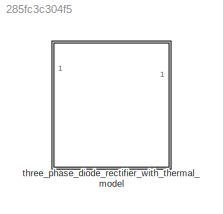
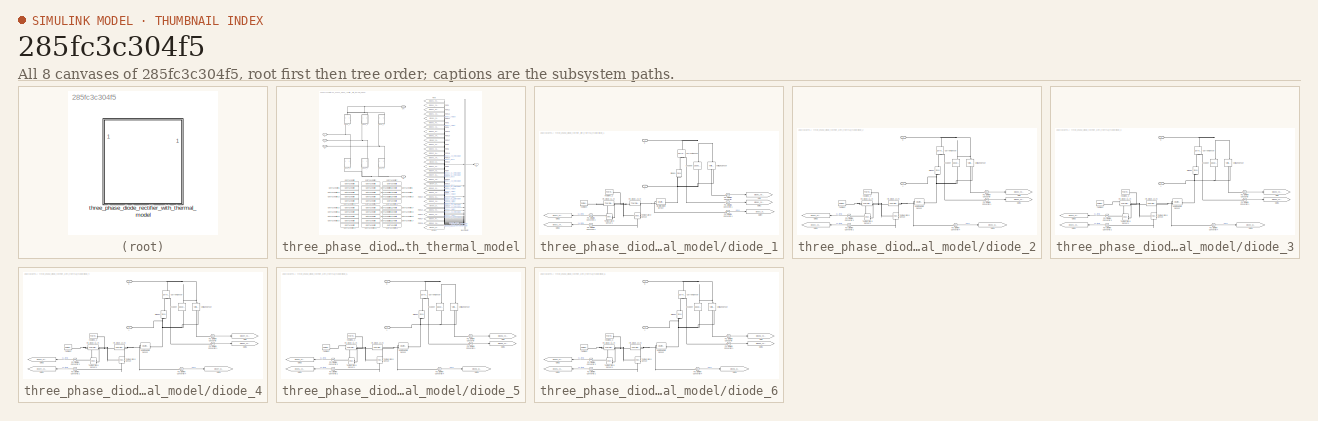
[diagram: thumbnail index - all 8 canvases of the model, root first then tree order]
MODEL slx_285fc3c304f5
KIND library
CONFIG AbsTol = auto
CONFIG EnableMultiTasking = off
CONFIG FixedStep = auto
CONFIG MaxStep = auto
CONFIG MinStep = auto
CONFIG RelTol = 1e-3
CONFIG SampleTimeConstraint = Unconstrained
CONFIG SolverName = VariableStepAuto
CONFIG StartTime = 0.0
CONFIG StopTime = 10.0
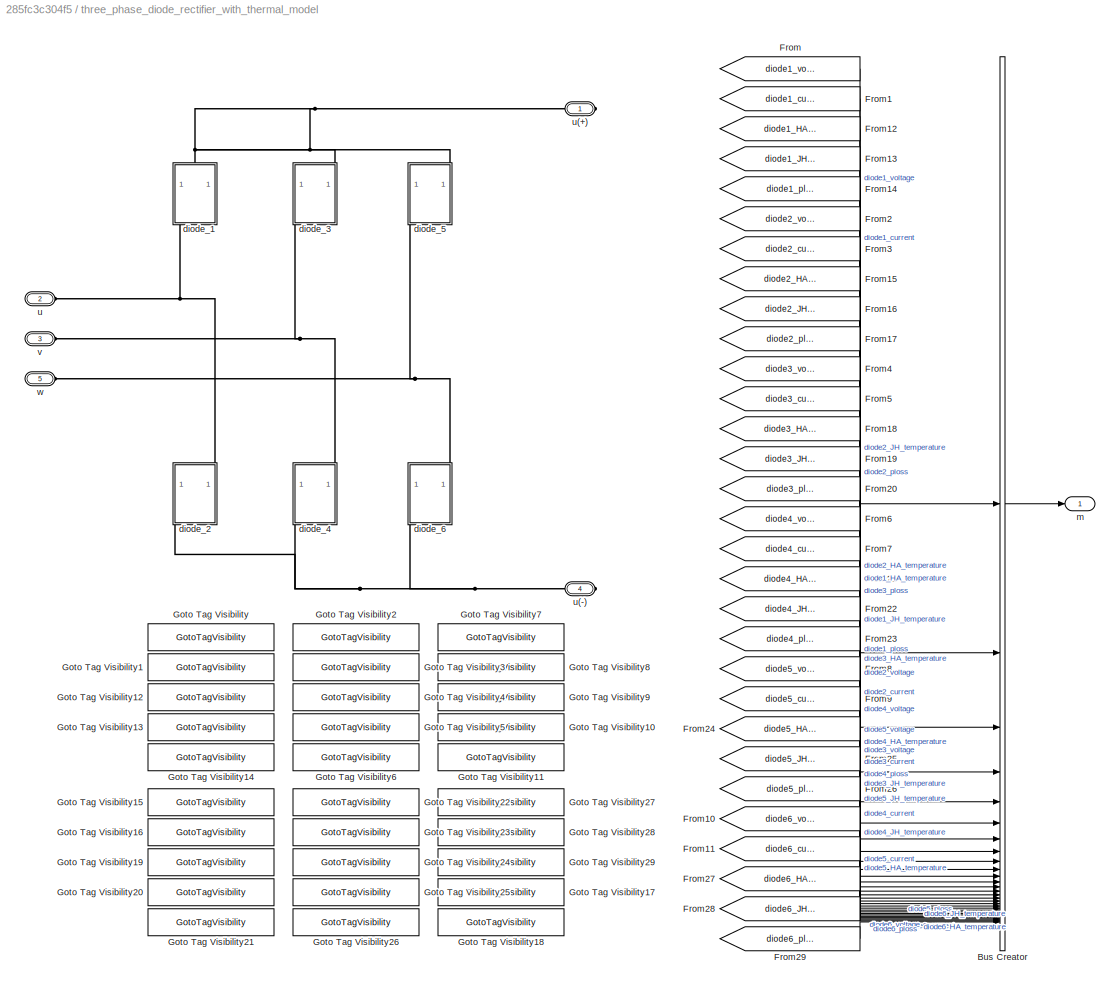
BLOCK [SubSystem] three_phase_diode_rectifier_with_thermal_model
BLOCK [BusCreator] three_phase_diode_rectifier_with_thermal_model/Bus Creator
  DisplayOption = bar
  InheritFromInputs = on
  Inputs = 30
BLOCK [From] three_phase_diode_rectifier_with_thermal_model/From
  GotoTag = diode1_voltage
  TagVisibility = scoped
BLOCK [From] three_phase_diode_rectifier_with_thermal_model/From1
  GotoTag = diode1_current
  TagVisibility = scoped
BLOCK [From] three_phase_diode_rectifier_with_thermal_model/From10
  GotoTag = diode6_voltage
  TagVisibility = scoped
BLOCK [From] three_phase_diode_rectifier_with_thermal_model/From11
  GotoTag = diode6_current
  TagVisibility = scoped
BLOCK [From] three_phase_diode_rectifier_with_thermal_model/From12
  GotoTag = diode1_HA_temperature
  TagVisibility = scoped
BLOCK [From] three_phase_diode_rectifier_with_thermal_model/From13
  GotoTag = diode1_JH_temperature
  TagVisibility = scoped
BLOCK [From] three_phase_diode_rectifier_with_thermal_model/From14
  GotoTag = diode1_ploss
  TagVisibility = scoped
BLOCK [From] three_phase_diode_rectifier_with_thermal_model/From15
  GotoTag = diode2_HA_temperature
  TagVisibility = scoped
BLOCK [From] three_phase_diode_rectifier_with_thermal_model/From16
  GotoTag = diode2_JH_temperature
  TagVisibility = scoped
BLOCK [From] three_phase_diode_rectifier_with_thermal_model/From17
  GotoTag = diode2_ploss
  TagVisibility = scoped
BLOCK [From] three_phase_diode_rectifier_with_thermal_model/From18
  GotoTag = diode3_HA_temperature
  TagVisibility = scoped
BLOCK [From] three_phase_diode_rectifier_with_thermal_model/From19
  GotoTag = diode3_JH_temperature
  TagVisibility = scoped
BLOCK [From] three_phase_diode_rectifier_with_thermal_model/From2
  GotoTag = diode2_voltage
  TagVisibility = scoped
BLOCK [From] three_phase_diode_rectifier_with_thermal_model/From20
  GotoTag = diode3_ploss
  TagVisibility = scoped
BLOCK [From] three_phase_diode_rectifier_with_thermal_model/From21
  GotoTag = diode4_HA_temperature
  TagVisibility = scoped
BLOCK [From] three_phase_diode_rectifier_with_thermal_model/From22
  GotoTag = diode4_JH_temperature
  TagVisibility = scoped
BLOCK [From] three_phase_diode_rectifier_with_thermal_model/From23
  GotoTag = diode4_ploss
  TagVisibility = scoped
BLOCK [From] three_phase_diode_rectifier_with_thermal_model/From24
  GotoTag = diode5_HA_temperature
  TagVisibility = scoped
BLOCK [From] three_phase_diode_rectifier_with_thermal_model/From25
  GotoTag = diode5_JH_temperature
  TagVisibility = scoped
BLOCK [From] three_phase_diode_rectifier_with_thermal_model/From26
  GotoTag = diode5_ploss
  TagVisibility = scoped
BLOCK [From] three_phase_diode_rectifier_with_thermal_model/From27
  GotoTag = diode6_HA_temperature
  TagVisibility = scoped
BLOCK [From] three_phase_diode_rectifier_with_thermal_model/From28
  GotoTag = diode6_JH_temperature
  TagVisibility = scoped
BLOCK [From] three_phase_diode_rectifier_with_thermal_model/From29
  GotoTag = diode6_ploss
  TagVisibility = scoped
BLOCK [From] three_phase_diode_rectifier_with_thermal_model/From3
  GotoTag = diode2_current
  TagVisibility = scoped
BLOCK [From] three_phase_diode_rectifier_with_thermal_model/From4
  GotoTag = diode3_voltage
  TagVisibility = scoped
BLOCK [From] three_phase_diode_rectifier_with_thermal_model/From5
  GotoTag = diode3_current
  TagVisibility = scoped
BLOCK [From] three_phase_diode_rectifier_with_thermal_model/From6
  GotoTag = diode4_voltage
  TagVisibility = scoped
BLOCK [From] three_phase_diode_rectifier_with_thermal_model/From7
  GotoTag = diode4_current
  TagVisibility = scoped
BLOCK [From] three_phase_diode_rectifier_with_thermal_model/From8
  GotoTag = diode5_voltage
  TagVisibility = scoped
BLOCK [From] three_phase_diode_rectifier_with_thermal_model/From9
  GotoTag = diode5_current
  TagVisibility = scoped
BLOCK [GotoTagVisibility] three_phase_diode_rectifier_with_thermal_model/Goto Tag Visibility
  GotoTag = diode1_voltage
BLOCK [GotoTagVisibility] three_phase_diode_rectifier_with_thermal_model/Goto Tag Visibility1
  GotoTag = diode1_current
BLOCK [GotoTagVisibility] three_phase_diode_rectifier_with_thermal_model/Goto Tag Visibility10
  GotoTag = diode3_JH_temperature
BLOCK [GotoTagVisibility] three_phase_diode_rectifier_with_thermal_model/Goto Tag Visibility11
  GotoTag = diode3_ploss
BLOCK [GotoTagVisibility] three_phase_diode_rectifier_with_thermal_model/Goto Tag Visibility12
  GotoTag = diode1_HA_temperature
BLOCK [GotoTagVisibility] three_phase_diode_rectifier_with_thermal_model/Goto Tag Visibility13
  GotoTag = diode1_JH_temperature
BLOCK [GotoTagVisibility] three_phase_diode_rectifier_with_thermal_model/Goto Tag Visibility14
  GotoTag = diode1_ploss
BLOCK [GotoTagVisibility] three_phase_diode_rectifier_with_thermal_model/Goto Tag Visibility15
  GotoTag = diode4_voltage
BLOCK [GotoTagVisibility] three_phase_diode_rectifier_with_thermal_model/Goto Tag Visibility16
  GotoTag = diode4_current
BLOCK [GotoTagVisibility] three_phase_diode_rectifier_with_thermal_model/Goto Tag Visibility17
  GotoTag = diode6_JH_temperature
BLOCK [GotoTagVisibility] three_phase_diode_rectifier_with_thermal_model/Goto Tag Visibility18
  GotoTag = diode6_ploss
BLOCK [GotoTagVisibility] three_phase_diode_rectifier_with_thermal_model/Goto Tag Visibility19
  GotoTag = diode4_HA_temperature
BLOCK [GotoTagVisibility] three_phase_diode_rectifier_with_thermal_model/Goto Tag Visibility2
  GotoTag = diode2_voltage
BLOCK [GotoTagVisibility] three_phase_diode_rectifier_with_thermal_model/Goto Tag Visibility20
  GotoTag = diode4_JH_temperature
BLOCK [GotoTagVisibility] three_phase_diode_rectifier_with_thermal_model/Goto Tag Visibility21
  GotoTag = diode4_ploss
BLOCK [GotoTagVisibility] three_phase_diode_rectifier_with_thermal_model/Goto Tag Visibility22
  GotoTag = diode5_voltage
BLOCK [GotoTagVisibility] three_phase_diode_rectifier_with_thermal_model/Goto Tag Visibility23
  GotoTag = diode5_current
BLOCK [GotoTagVisibility] three_phase_diode_rectifier_with_thermal_model/Goto Tag Visibility24
  GotoTag = diode5_HA_temperature
BLOCK [GotoTagVisibility] three_phase_diode_rectifier_with_thermal_model/Goto Tag Visibility25
  GotoTag = diode5_JH_temperature
BLOCK [GotoTagVisibility] three_phase_diode_rectifier_with_thermal_model/Goto Tag Visibility26
  GotoTag = diode5_ploss
BLOCK [GotoTagVisibility] three_phase_diode_rectifier_with_thermal_model/Goto Tag Visibility27
  GotoTag = diode6_voltage
BLOCK [GotoTagVisibility] three_phase_diode_rectifier_with_thermal_model/Goto Tag Visibility28
  GotoTag = diode6_current
BLOCK [GotoTagVisibility] three_phase_diode_rectifier_with_thermal_model/Goto Tag Visibility29
  GotoTag = diode6_HA_temperature
BLOCK [GotoTagVisibility] three_phase_diode_rectifier_with_thermal_model/Goto Tag Visibility3
  GotoTag = diode2_current
BLOCK [GotoTagVisibility] three_phase_diode_rectifier_with_thermal_model/Goto Tag Visibility4
  GotoTag = diode2_HA_temperature
BLOCK [GotoTagVisibility] three_phase_diode_rectifier_with_thermal_model/Goto Tag Visibility5
  GotoTag = diode2_JH_temperature
BLOCK [GotoTagVisibility] three_phase_diode_rectifier_with_thermal_model/Goto Tag Visibility6
  GotoTag = diode2_ploss
BLOCK [GotoTagVisibility] three_phase_diode_rectifier_with_thermal_model/Goto Tag Visibility7
  GotoTag = diode3_voltage
BLOCK [GotoTagVisibility] three_phase_diode_rectifier_with_thermal_model/Goto Tag Visibility8
  GotoTag = diode3_current
BLOCK [GotoTagVisibility] three_phase_diode_rectifier_with_thermal_model/Goto Tag Visibility9
  GotoTag = diode3_HA_temperature
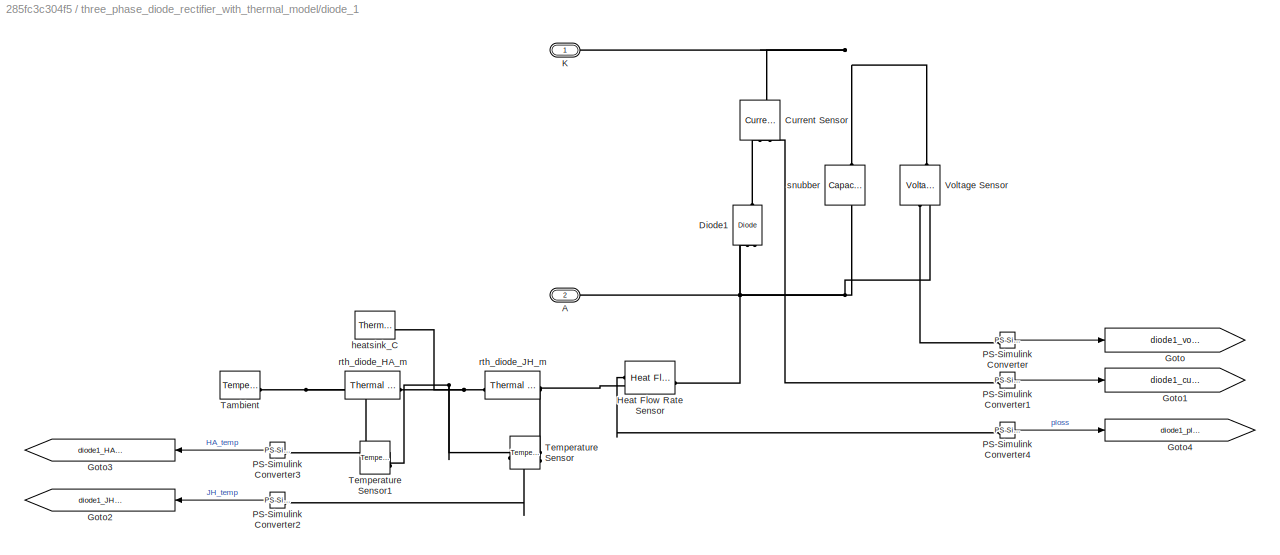
BLOCK [SubSystem] three_phase_diode_rectifier_with_thermal_model/diode_1
  NameLocation = left
  PortSchema = {"entries":[{"content":{"sides":[{"content":{},"type":"ConnectorPlacement.EquallySpacedRectSide","uuid":"9277da8d-d460-43e6-8478-dd662f15d226"},{"content":{"side":"RIGHT"},"type":"ConnectorPlacement.EquallySpacedRectSide","uuid":"a7ece396-f1d9-4f4f-a05b-db1fc65d6e1d"},{"content":{"connectorIds":["LConn1"],"side":"TOP"},"type":"ConnectorPlacement.EquallySpacedRectSide","uuid":"fdd70777-e9cf-4317-af...<+354ch>  <repeated x6 — deduplicated; at blocks: diode_1, diode_2, diode_3, diode_4, diode_5, diode_6>
BLOCK [PMIOPort] three_phase_diode_rectifier_with_thermal_model/diode_1/A
  NameLocation = top
  Port = 2
  Side = Right
BLOCK [Reference] three_phase_diode_rectifier_with_thermal_model/diode_1/Current Sensor  REF=fl_lib/Electrical/Electrical Sensors/Current Sensor
  NameLocation = left
  SourceBlock = fl_lib/Electrical/Electrical Sensors/Current Sensor
  SourceType = Current Sensor
BLOCK [Reference] three_phase_diode_rectifier_with_thermal_model/diode_1/Diode1  REF=ee_lib/Semiconductors &
Converters/Diode
  NameLocation = right
  SourceBlock = ee_lib/Semiconductors &\nConverters/Diode
  SourceType = Diode
BLOCK [Goto] three_phase_diode_rectifier_with_thermal_model/diode_1/Goto
  GotoTag = diode1_voltage
  TagVisibility = scoped
BLOCK [Goto] three_phase_diode_rectifier_with_thermal_model/diode_1/Goto1
  GotoTag = diode1_current
  TagVisibility = scoped
BLOCK [Goto] three_phase_diode_rectifier_with_thermal_model/diode_1/Goto2
  GotoTag = diode1_JH_temperature
  NameLocation = top
  TagVisibility = scoped
BLOCK [Goto] three_phase_diode_rectifier_with_thermal_model/diode_1/Goto3
  GotoTag = diode1_HA_temperature
  NameLocation = top
  TagVisibility = scoped
BLOCK [Goto] three_phase_diode_rectifier_with_thermal_model/diode_1/Goto4
  GotoTag = diode1_ploss
  TagVisibility = scoped
BLOCK [Reference] three_phase_diode_rectifier_with_thermal_model/diode_1/Heat Flow Rate Sensor  REF=fl_lib/Thermal/Thermal Sensors/Heat Flow Rate
Sensor
  SourceBlock = fl_lib/Thermal/Thermal Sensors/Heat Flow Rate\nSensor
  SourceType = Heat Flow Rate\nSensor
BLOCK [PMIOPort] three_phase_diode_rectifier_with_thermal_model/diode_1/K
  NameLocation = top
  Side = Left
BLOCK [Reference] three_phase_diode_rectifier_with_thermal_model/diode_1/PS-Simulink Converter  REF=nesl_utility/PS-Simulink
Converter
  SourceBlock = nesl_utility/PS-Simulink\nConverter
  SourceType = PS-Simulink\nConverter
BLOCK [Reference] three_phase_diode_rectifier_with_thermal_model/diode_1/PS-Simulink Converter1  REF=nesl_utility/PS-Simulink
Converter
  SourceBlock = nesl_utility/PS-Simulink\nConverter
  SourceType = PS-Simulink\nConverter
BLOCK [Reference] three_phase_diode_rectifier_with_thermal_model/diode_1/PS-Simulink Converter2  REF=nesl_utility/PS-Simulink
Converter
  SourceBlock = nesl_utility/PS-Simulink\nConverter
  SourceType = PS-Simulink\nConverter
BLOCK [Reference] three_phase_diode_rectifier_with_thermal_model/diode_1/PS-Simulink Converter3  REF=nesl_utility/PS-Simulink
Converter
  NameLocation = right
  SourceBlock = nesl_utility/PS-Simulink\nConverter
  SourceType = PS-Simulink\nConverter
BLOCK [Reference] three_phase_diode_rectifier_with_thermal_model/diode_1/PS-Simulink Converter4  REF=nesl_utility/PS-Simulink
Converter
  SourceBlock = nesl_utility/PS-Simulink\nConverter
  SourceType = PS-Simulink\nConverter
BLOCK [Reference] three_phase_diode_rectifier_with_thermal_model/diode_1/Tambient  REF=fl_lib/Thermal/Thermal Sources/Temperature Source
  SourceBlock = fl_lib/Thermal/Thermal Sources/Temperature Source
  SourceType = Temperature Source
BLOCK [Reference] three_phase_diode_rectifier_with_thermal_model/diode_1/Temperature Sensor  REF=fl_lib/Thermal/Thermal Sensors/Temperature Sensor
  NameLocation = top
  SourceBlock = fl_lib/Thermal/Thermal Sensors/Temperature Sensor
  SourceType = Temperature Sensor
BLOCK [Reference] three_phase_diode_rectifier_with_thermal_model/diode_1/Temperature Sensor1  REF=fl_lib/Thermal/Thermal Sensors/Temperature Sensor
  NameLocation = top
  SourceBlock = fl_lib/Thermal/Thermal Sensors/Temperature Sensor
  SourceType = Temperature Sensor
BLOCK [Reference] three_phase_diode_rectifier_with_thermal_model/diode_1/Voltage Sensor  REF=fl_lib/Electrical/Electrical Sensors/Voltage Sensor
  NameLocation = right
  SourceBlock = fl_lib/Electrical/Electrical Sensors/Voltage Sensor
  SourceType = Voltage Sensor
BLOCK [Reference] three_phase_diode_rectifier_with_thermal_model/diode_1/heatsink_C  REF=fl_lib/Thermal/Thermal Elements/Thermal Mass
  SourceBlock = fl_lib/Thermal/Thermal Elements/Thermal Mass
  SourceType = Thermal Mass
BLOCK [Reference] three_phase_diode_rectifier_with_thermal_model/diode_1/rth_diode_HA_m  REF=fl_lib/Thermal/Thermal Elements/Thermal Resistance
  SourceBlock = fl_lib/Thermal/Thermal Elements/Thermal Resistance
  SourceType = Thermal Resistance
BLOCK [Reference] three_phase_diode_rectifier_with_thermal_model/diode_1/rth_diode_JH_m  REF=fl_lib/Thermal/Thermal Elements/Thermal Resistance
  SourceBlock = fl_lib/Thermal/Thermal Elements/Thermal Resistance
  SourceType = Thermal Resistance
BLOCK [Reference] three_phase_diode_rectifier_with_thermal_model/diode_1/snubber  REF=fl_lib/Electrical/Electrical Elements/Capacitor
  NameLocation = left
  SourceBlock = fl_lib/Electrical/Electrical Elements/Capacitor
  SourceType = Capacitor
BLOCK [SubSystem] three_phase_diode_rectifier_with_thermal_model/diode_2
  NameLocation = left
BLOCK [PMIOPort] three_phase_diode_rectifier_with_thermal_model/diode_2/A
  NameLocation = top
  Port = 2
  Side = Right
BLOCK [Reference] three_phase_diode_rectifier_with_thermal_model/diode_2/Current Sensor  REF=fl_lib/Electrical/Electrical Sensors/Current Sensor
  NameLocation = left
  SourceBlock = fl_lib/Electrical/Electrical Sensors/Current Sensor
  SourceType = Current Sensor
BLOCK [Reference] three_phase_diode_rectifier_with_thermal_model/diode_2/Diode1  REF=ee_lib/Semiconductors &
Converters/Diode
  NameLocation = right
  SourceBlock = ee_lib/Semiconductors &\nConverters/Diode
  SourceType = Diode
BLOCK [Goto] three_phase_diode_rectifier_with_thermal_model/diode_2/Goto
  GotoTag = diode2_voltage
  TagVisibility = scoped
BLOCK [Goto] three_phase_diode_rectifier_with_thermal_model/diode_2/Goto1
  GotoTag = diode2_current
  TagVisibility = scoped
BLOCK [Goto] three_phase_diode_rectifier_with_thermal_model/diode_2/Goto2
  GotoTag = diode2_JH_temperature
  NameLocation = top
  TagVisibility = scoped
BLOCK [Goto] three_phase_diode_rectifier_with_thermal_model/diode_2/Goto3
  GotoTag = diode2_HA_temperature
  NameLocation = top
  TagVisibility = scoped
BLOCK [Goto] three_phase_diode_rectifier_with_thermal_model/diode_2/Goto4
  GotoTag = diode2_ploss
  TagVisibility = scoped
BLOCK [Reference] three_phase_diode_rectifier_with_thermal_model/diode_2/Heat Flow Rate Sensor  REF=fl_lib/Thermal/Thermal Sensors/Heat Flow Rate
Sensor
  SourceBlock = fl_lib/Thermal/Thermal Sensors/Heat Flow Rate\nSensor
  SourceType = Heat Flow Rate\nSensor
BLOCK [PMIOPort] three_phase_diode_rectifier_with_thermal_model/diode_2/K
  NameLocation = top
  Side = Left
BLOCK [Reference] three_phase_diode_rectifier_with_thermal_model/diode_2/PS-Simulink Converter  REF=nesl_utility/PS-Simulink
Converter
  SourceBlock = nesl_utility/PS-Simulink\nConverter
  SourceType = PS-Simulink\nConverter
BLOCK [Reference] three_phase_diode_rectifier_with_thermal_model/diode_2/PS-Simulink Converter1  REF=nesl_utility/PS-Simulink
Converter
  SourceBlock = nesl_utility/PS-Simulink\nConverter
  SourceType = PS-Simulink\nConverter
BLOCK [Reference] three_phase_diode_rectifier_with_thermal_model/diode_2/PS-Simulink Converter2  REF=nesl_utility/PS-Simulink
Converter
  SourceBlock = nesl_utility/PS-Simulink\nConverter
  SourceType = PS-Simulink\nConverter
BLOCK [Reference] three_phase_diode_rectifier_with_thermal_model/diode_2/PS-Simulink Converter3  REF=nesl_utility/PS-Simulink
Converter
  NameLocation = right
  SourceBlock = nesl_utility/PS-Simulink\nConverter
  SourceType = PS-Simulink\nConverter
BLOCK [Reference] three_phase_diode_rectifier_with_thermal_model/diode_2/PS-Simulink Converter4  REF=nesl_utility/PS-Simulink
Converter
  SourceBlock = nesl_utility/PS-Simulink\nConverter
  SourceType = PS-Simulink\nConverter
BLOCK [Reference] three_phase_diode_rectifier_with_thermal_model/diode_2/Tambient  REF=fl_lib/Thermal/Thermal Sources/Temperature Source
  SourceBlock = fl_lib/Thermal/Thermal Sources/Temperature Source
  SourceType = Temperature Source
BLOCK [Reference] three_phase_diode_rectifier_with_thermal_model/diode_2/Temperature Sensor  REF=fl_lib/Thermal/Thermal Sensors/Temperature Sensor
  NameLocation = top
  SourceBlock = fl_lib/Thermal/Thermal Sensors/Temperature Sensor
  SourceType = Temperature Sensor
BLOCK [Reference] three_phase_diode_rectifier_with_thermal_model/diode_2/Temperature Sensor1  REF=fl_lib/Thermal/Thermal Sensors/Temperature Sensor
  NameLocation = top
  SourceBlock = fl_lib/Thermal/Thermal Sensors/Temperature Sensor
  SourceType = Temperature Sensor
BLOCK [Reference] three_phase_diode_rectifier_with_thermal_model/diode_2/Voltage Sensor  REF=fl_lib/Electrical/Electrical Sensors/Voltage Sensor
  NameLocation = right
  SourceBlock = fl_lib/Electrical/Electrical Sensors/Voltage Sensor
  SourceType = Voltage Sensor
BLOCK [Reference] three_phase_diode_rectifier_with_thermal_model/diode_2/heatsink_C  REF=fl_lib/Thermal/Thermal Elements/Thermal Mass
  SourceBlock = fl_lib/Thermal/Thermal Elements/Thermal Mass
  SourceType = Thermal Mass
BLOCK [Reference] three_phase_diode_rectifier_with_thermal_model/diode_2/rth_diode_HA_m  REF=fl_lib/Thermal/Thermal Elements/Thermal Resistance
  SourceBlock = fl_lib/Thermal/Thermal Elements/Thermal Resistance
  SourceType = Thermal Resistance
BLOCK [Reference] three_phase_diode_rectifier_with_thermal_model/diode_2/rth_diode_JH_m  REF=fl_lib/Thermal/Thermal Elements/Thermal Resistance
  SourceBlock = fl_lib/Thermal/Thermal Elements/Thermal Resistance
  SourceType = Thermal Resistance
BLOCK [Reference] three_phase_diode_rectifier_with_thermal_model/diode_2/snubber  REF=fl_lib/Electrical/Electrical Elements/Capacitor
  NameLocation = left
  SourceBlock = fl_lib/Electrical/Electrical Elements/Capacitor
  SourceType = Capacitor
BLOCK [SubSystem] three_phase_diode_rectifier_with_thermal_model/diode_3
  NameLocation = left
BLOCK [PMIOPort] three_phase_diode_rectifier_with_thermal_model/diode_3/A
  NameLocation = top
  Port = 2
  Side = Right
BLOCK [Reference] three_phase_diode_rectifier_with_thermal_model/diode_3/Current Sensor  REF=fl_lib/Electrical/Electrical Sensors/Current Sensor
  NameLocation = left
  SourceBlock = fl_lib/Electrical/Electrical Sensors/Current Sensor
  SourceType = Current Sensor
BLOCK [Reference] three_phase_diode_rectifier_with_thermal_model/diode_3/Diode1  REF=ee_lib/Semiconductors &
Converters/Diode
  NameLocation = right
  SourceBlock = ee_lib/Semiconductors &\nConverters/Diode
  SourceType = Diode
BLOCK [Goto] three_phase_diode_rectifier_with_thermal_model/diode_3/Goto
  GotoTag = diode3_voltage
  TagVisibility = scoped
BLOCK [Goto] three_phase_diode_rectifier_with_thermal_model/diode_3/Goto1
  GotoTag = diode3_current
  TagVisibility = scoped
BLOCK [Goto] three_phase_diode_rectifier_with_thermal_model/diode_3/Goto2
  GotoTag = diode3_JH_temperature
  NameLocation = top
  TagVisibility = scoped
BLOCK [Goto] three_phase_diode_rectifier_with_thermal_model/diode_3/Goto3
  GotoTag = diode3_HA_temperature
  NameLocation = top
  TagVisibility = scoped
BLOCK [Goto] three_phase_diode_rectifier_with_thermal_model/diode_3/Goto4
  GotoTag = diode3_ploss
  TagVisibility = scoped
BLOCK [Reference] three_phase_diode_rectifier_with_thermal_model/diode_3/Heat Flow Rate Sensor  REF=fl_lib/Thermal/Thermal Sensors/Heat Flow Rate
Sensor
  SourceBlock = fl_lib/Thermal/Thermal Sensors/Heat Flow Rate\nSensor
  SourceType = Heat Flow Rate\nSensor
BLOCK [PMIOPort] three_phase_diode_rectifier_with_thermal_model/diode_3/K
  NameLocation = top
  Side = Left
BLOCK [Reference] three_phase_diode_rectifier_with_thermal_model/diode_3/PS-Simulink Converter  REF=nesl_utility/PS-Simulink
Converter
  SourceBlock = nesl_utility/PS-Simulink\nConverter
  SourceType = PS-Simulink\nConverter
BLOCK [Reference] three_phase_diode_rectifier_with_thermal_model/diode_3/PS-Simulink Converter1  REF=nesl_utility/PS-Simulink
Converter
  SourceBlock = nesl_utility/PS-Simulink\nConverter
  SourceType = PS-Simulink\nConverter
BLOCK [Reference] three_phase_diode_rectifier_with_thermal_model/diode_3/PS-Simulink Converter2  REF=nesl_utility/PS-Simulink
Converter
  SourceBlock = nesl_utility/PS-Simulink\nConverter
  SourceType = PS-Simulink\nConverter
BLOCK [Reference] three_phase_diode_rectifier_with_thermal_model/diode_3/PS-Simulink Converter3  REF=nesl_utility/PS-Simulink
Converter
  NameLocation = right
  SourceBlock = nesl_utility/PS-Simulink\nConverter
  SourceType = PS-Simulink\nConverter
BLOCK [Reference] three_phase_diode_rectifier_with_thermal_model/diode_3/PS-Simulink Converter4  REF=nesl_utility/PS-Simulink
Converter
  SourceBlock = nesl_utility/PS-Simulink\nConverter
  SourceType = PS-Simulink\nConverter
BLOCK [Reference] three_phase_diode_rectifier_with_thermal_model/diode_3/Tambient  REF=fl_lib/Thermal/Thermal Sources/Temperature Source
  SourceBlock = fl_lib/Thermal/Thermal Sources/Temperature Source
  SourceType = Temperature Source
BLOCK [Reference] three_phase_diode_rectifier_with_thermal_model/diode_3/Temperature Sensor  REF=fl_lib/Thermal/Thermal Sensors/Temperature Sensor
  NameLocation = top
  SourceBlock = fl_lib/Thermal/Thermal Sensors/Temperature Sensor
  SourceType = Temperature Sensor
BLOCK [Reference] three_phase_diode_rectifier_with_thermal_model/diode_3/Temperature Sensor1  REF=fl_lib/Thermal/Thermal Sensors/Temperature Sensor
  NameLocation = top
  SourceBlock = fl_lib/Thermal/Thermal Sensors/Temperature Sensor
  SourceType = Temperature Sensor
BLOCK [Reference] three_phase_diode_rectifier_with_thermal_model/diode_3/Voltage Sensor  REF=fl_lib/Electrical/Electrical Sensors/Voltage Sensor
  NameLocation = right
  SourceBlock = fl_lib/Electrical/Electrical Sensors/Voltage Sensor
  SourceType = Voltage Sensor
BLOCK [Reference] three_phase_diode_rectifier_with_thermal_model/diode_3/heatsink_C  REF=fl_lib/Thermal/Thermal Elements/Thermal Mass
  SourceBlock = fl_lib/Thermal/Thermal Elements/Thermal Mass
  SourceType = Thermal Mass
BLOCK [Reference] three_phase_diode_rectifier_with_thermal_model/diode_3/rth_diode_HA_m  REF=fl_lib/Thermal/Thermal Elements/Thermal Resistance
  SourceBlock = fl_lib/Thermal/Thermal Elements/Thermal Resistance
  SourceType = Thermal Resistance
BLOCK [Reference] three_phase_diode_rectifier_with_thermal_model/diode_3/rth_diode_JH_m  REF=fl_lib/Thermal/Thermal Elements/Thermal Resistance
  SourceBlock = fl_lib/Thermal/Thermal Elements/Thermal Resistance
  SourceType = Thermal Resistance
BLOCK [Reference] three_phase_diode_rectifier_with_thermal_model/diode_3/snubber  REF=fl_lib/Electrical/Electrical Elements/Capacitor
  NameLocation = left
  SourceBlock = fl_lib/Electrical/Electrical Elements/Capacitor
  SourceType = Capacitor
BLOCK [SubSystem] three_phase_diode_rectifier_with_thermal_model/diode_4
  NameLocation = left
BLOCK [PMIOPort] three_phase_diode_rectifier_with_thermal_model/diode_4/A
  NameLocation = top
  Port = 2
  Side = Right
BLOCK [Reference] three_phase_diode_rectifier_with_thermal_model/diode_4/Current Sensor  REF=fl_lib/Electrical/Electrical Sensors/Current Sensor
  NameLocation = left
  SourceBlock = fl_lib/Electrical/Electrical Sensors/Current Sensor
  SourceType = Current Sensor
BLOCK [Reference] three_phase_diode_rectifier_with_thermal_model/diode_4/Diode1  REF=ee_lib/Semiconductors &
Converters/Diode
  NameLocation = right
  SourceBlock = ee_lib/Semiconductors &\nConverters/Diode
  SourceType = Diode
BLOCK [Goto] three_phase_diode_rectifier_with_thermal_model/diode_4/Goto
  GotoTag = diode4_voltage
  TagVisibility = scoped
BLOCK [Goto] three_phase_diode_rectifier_with_thermal_model/diode_4/Goto1
  GotoTag = diode4_current
  TagVisibility = scoped
BLOCK [Goto] three_phase_diode_rectifier_with_thermal_model/diode_4/Goto2
  GotoTag = diode4_JH_temperature
  NameLocation = top
  TagVisibility = scoped
BLOCK [Goto] three_phase_diode_rectifier_with_thermal_model/diode_4/Goto3
  GotoTag = diode4_HA_temperature
  NameLocation = top
  TagVisibility = scoped
BLOCK [Goto] three_phase_diode_rectifier_with_thermal_model/diode_4/Goto4
  GotoTag = diode4_ploss
  TagVisibility = scoped
BLOCK [Reference] three_phase_diode_rectifier_with_thermal_model/diode_4/Heat Flow Rate Sensor  REF=fl_lib/Thermal/Thermal Sensors/Heat Flow Rate
Sensor
  SourceBlock = fl_lib/Thermal/Thermal Sensors/Heat Flow Rate\nSensor
  SourceType = Heat Flow Rate\nSensor
BLOCK [PMIOPort] three_phase_diode_rectifier_with_thermal_model/diode_4/K
  NameLocation = top
  Side = Left
BLOCK [Reference] three_phase_diode_rectifier_with_thermal_model/diode_4/PS-Simulink Converter  REF=nesl_utility/PS-Simulink
Converter
  SourceBlock = nesl_utility/PS-Simulink\nConverter
  SourceType = PS-Simulink\nConverter
BLOCK [Reference] three_phase_diode_rectifier_with_thermal_model/diode_4/PS-Simulink Converter1  REF=nesl_utility/PS-Simulink
Converter
  SourceBlock = nesl_utility/PS-Simulink\nConverter
  SourceType = PS-Simulink\nConverter
BLOCK [Reference] three_phase_diode_rectifier_with_thermal_model/diode_4/PS-Simulink Converter2  REF=nesl_utility/PS-Simulink
Converter
  SourceBlock = nesl_utility/PS-Simulink\nConverter
  SourceType = PS-Simulink\nConverter
BLOCK [Reference] three_phase_diode_rectifier_with_thermal_model/diode_4/PS-Simulink Converter3  REF=nesl_utility/PS-Simulink
Converter
  NameLocation = right
  SourceBlock = nesl_utility/PS-Simulink\nConverter
  SourceType = PS-Simulink\nConverter
BLOCK [Reference] three_phase_diode_rectifier_with_thermal_model/diode_4/PS-Simulink Converter4  REF=nesl_utility/PS-Simulink
Converter
  SourceBlock = nesl_utility/PS-Simulink\nConverter
  SourceType = PS-Simulink\nConverter
BLOCK [Reference] three_phase_diode_rectifier_with_thermal_model/diode_4/Tambient  REF=fl_lib/Thermal/Thermal Sources/Temperature Source
  SourceBlock = fl_lib/Thermal/Thermal Sources/Temperature Source
  SourceType = Temperature Source
BLOCK [Reference] three_phase_diode_rectifier_with_thermal_model/diode_4/Temperature Sensor  REF=fl_lib/Thermal/Thermal Sensors/Temperature Sensor
  NameLocation = top
  SourceBlock = fl_lib/Thermal/Thermal Sensors/Temperature Sensor
  SourceType = Temperature Sensor
BLOCK [Reference] three_phase_diode_rectifier_with_thermal_model/diode_4/Temperature Sensor1  REF=fl_lib/Thermal/Thermal Sensors/Temperature Sensor
  NameLocation = top
  SourceBlock = fl_lib/Thermal/Thermal Sensors/Temperature Sensor
  SourceType = Temperature Sensor
BLOCK [Reference] three_phase_diode_rectifier_with_thermal_model/diode_4/Voltage Sensor  REF=fl_lib/Electrical/Electrical Sensors/Voltage Sensor
  NameLocation = right
  SourceBlock = fl_lib/Electrical/Electrical Sensors/Voltage Sensor
  SourceType = Voltage Sensor
BLOCK [Reference] three_phase_diode_rectifier_with_thermal_model/diode_4/heatsink_C  REF=fl_lib/Thermal/Thermal Elements/Thermal Mass
  SourceBlock = fl_lib/Thermal/Thermal Elements/Thermal Mass
  SourceType = Thermal Mass
BLOCK [Reference] three_phase_diode_rectifier_with_thermal_model/diode_4/rth_diode_HA_m  REF=fl_lib/Thermal/Thermal Elements/Thermal Resistance
  SourceBlock = fl_lib/Thermal/Thermal Elements/Thermal Resistance
  SourceType = Thermal Resistance
BLOCK [Reference] three_phase_diode_rectifier_with_thermal_model/diode_4/rth_diode_JH_m  REF=fl_lib/Thermal/Thermal Elements/Thermal Resistance
  SourceBlock = fl_lib/Thermal/Thermal Elements/Thermal Resistance
  SourceType = Thermal Resistance
BLOCK [Reference] three_phase_diode_rectifier_with_thermal_model/diode_4/snubber  REF=fl_lib/Electrical/Electrical Elements/Capacitor
  NameLocation = left
  SourceBlock = fl_lib/Electrical/Electrical Elements/Capacitor
  SourceType = Capacitor
BLOCK [SubSystem] three_phase_diode_rectifier_with_thermal_model/diode_5
  NameLocation = left
BLOCK [PMIOPort] three_phase_diode_rectifier_with_thermal_model/diode_5/A
  NameLocation = top
  Port = 2
  Side = Right
BLOCK [Reference] three_phase_diode_rectifier_with_thermal_model/diode_5/Current Sensor  REF=fl_lib/Electrical/Electrical Sensors/Current Sensor
  NameLocation = left
  SourceBlock = fl_lib/Electrical/Electrical Sensors/Current Sensor
  SourceType = Current Sensor
BLOCK [Reference] three_phase_diode_rectifier_with_thermal_model/diode_5/Diode1  REF=ee_lib/Semiconductors &
Converters/Diode
  NameLocation = right
  SourceBlock = ee_lib/Semiconductors &\nConverters/Diode
  SourceType = Diode
BLOCK [Goto] three_phase_diode_rectifier_with_thermal_model/diode_5/Goto
  GotoTag = diode5_voltage
  TagVisibility = scoped
BLOCK [Goto] three_phase_diode_rectifier_with_thermal_model/diode_5/Goto1
  GotoTag = diode5_current
  TagVisibility = scoped
BLOCK [Goto] three_phase_diode_rectifier_with_thermal_model/diode_5/Goto2
  GotoTag = diode5_JH_temperature
  NameLocation = top
  TagVisibility = scoped
BLOCK [Goto] three_phase_diode_rectifier_with_thermal_model/diode_5/Goto3
  GotoTag = diode5_HA_temperature
  NameLocation = top
  TagVisibility = scoped
BLOCK [Goto] three_phase_diode_rectifier_with_thermal_model/diode_5/Goto4
  GotoTag = diode5_ploss
  TagVisibility = scoped
BLOCK [Reference] three_phase_diode_rectifier_with_thermal_model/diode_5/Heat Flow Rate Sensor  REF=fl_lib/Thermal/Thermal Sensors/Heat Flow Rate
Sensor
  SourceBlock = fl_lib/Thermal/Thermal Sensors/Heat Flow Rate\nSensor
  SourceType = Heat Flow Rate\nSensor
BLOCK [PMIOPort] three_phase_diode_rectifier_with_thermal_model/diode_5/K
  NameLocation = top
  Side = Left
BLOCK [Reference] three_phase_diode_rectifier_with_thermal_model/diode_5/PS-Simulink Converter  REF=nesl_utility/PS-Simulink
Converter
  SourceBlock = nesl_utility/PS-Simulink\nConverter
  SourceType = PS-Simulink\nConverter
BLOCK [Reference] three_phase_diode_rectifier_with_thermal_model/diode_5/PS-Simulink Converter1  REF=nesl_utility/PS-Simulink
Converter
  SourceBlock = nesl_utility/PS-Simulink\nConverter
  SourceType = PS-Simulink\nConverter
BLOCK [Reference] three_phase_diode_rectifier_with_thermal_model/diode_5/PS-Simulink Converter2  REF=nesl_utility/PS-Simulink
Converter
  SourceBlock = nesl_utility/PS-Simulink\nConverter
  SourceType = PS-Simulink\nConverter
BLOCK [Reference] three_phase_diode_rectifier_with_thermal_model/diode_5/PS-Simulink Converter3  REF=nesl_utility/PS-Simulink
Converter
  NameLocation = right
  SourceBlock = nesl_utility/PS-Simulink\nConverter
  SourceType = PS-Simulink\nConverter
BLOCK [Reference] three_phase_diode_rectifier_with_thermal_model/diode_5/PS-Simulink Converter4  REF=nesl_utility/PS-Simulink
Converter
  SourceBlock = nesl_utility/PS-Simulink\nConverter
  SourceType = PS-Simulink\nConverter
BLOCK [Reference] three_phase_diode_rectifier_with_thermal_model/diode_5/Tambient  REF=fl_lib/Thermal/Thermal Sources/Temperature Source
  SourceBlock = fl_lib/Thermal/Thermal Sources/Temperature Source
  SourceType = Temperature Source
BLOCK [Reference] three_phase_diode_rectifier_with_thermal_model/diode_5/Temperature Sensor  REF=fl_lib/Thermal/Thermal Sensors/Temperature Sensor
  NameLocation = top
  SourceBlock = fl_lib/Thermal/Thermal Sensors/Temperature Sensor
  SourceType = Temperature Sensor
BLOCK [Reference] three_phase_diode_rectifier_with_thermal_model/diode_5/Temperature Sensor1  REF=fl_lib/Thermal/Thermal Sensors/Temperature Sensor
  NameLocation = top
  SourceBlock = fl_lib/Thermal/Thermal Sensors/Temperature Sensor
  SourceType = Temperature Sensor
BLOCK [Reference] three_phase_diode_rectifier_with_thermal_model/diode_5/Voltage Sensor  REF=fl_lib/Electrical/Electrical Sensors/Voltage Sensor
  NameLocation = right
  SourceBlock = fl_lib/Electrical/Electrical Sensors/Voltage Sensor
  SourceType = Voltage Sensor
BLOCK [Reference] three_phase_diode_rectifier_with_thermal_model/diode_5/heatsink_C  REF=fl_lib/Thermal/Thermal Elements/Thermal Mass
  SourceBlock = fl_lib/Thermal/Thermal Elements/Thermal Mass
  SourceType = Thermal Mass
BLOCK [Reference] three_phase_diode_rectifier_with_thermal_model/diode_5/rth_diode_HA_m  REF=fl_lib/Thermal/Thermal Elements/Thermal Resistance
  SourceBlock = fl_lib/Thermal/Thermal Elements/Thermal Resistance
  SourceType = Thermal Resistance
BLOCK [Reference] three_phase_diode_rectifier_with_thermal_model/diode_5/rth_diode_JH_m  REF=fl_lib/Thermal/Thermal Elements/Thermal Resistance
  SourceBlock = fl_lib/Thermal/Thermal Elements/Thermal Resistance
  SourceType = Thermal Resistance
BLOCK [Reference] three_phase_diode_rectifier_with_thermal_model/diode_5/snubber  REF=fl_lib/Electrical/Electrical Elements/Capacitor
  NameLocation = left
  SourceBlock = fl_lib/Electrical/Electrical Elements/Capacitor
  SourceType = Capacitor
BLOCK [SubSystem] three_phase_diode_rectifier_with_thermal_model/diode_6
  NameLocation = left
BLOCK [PMIOPort] three_phase_diode_rectifier_with_thermal_model/diode_6/A
  NameLocation = top
  Port = 2
  Side = Right
BLOCK [Reference] three_phase_diode_rectifier_with_thermal_model/diode_6/Current Sensor  REF=fl_lib/Electrical/Electrical Sensors/Current Sensor
  NameLocation = left
  SourceBlock = fl_lib/Electrical/Electrical Sensors/Current Sensor
  SourceType = Current Sensor
BLOCK [Reference] three_phase_diode_rectifier_with_thermal_model/diode_6/Diode1  REF=ee_lib/Semiconductors &
Converters/Diode
  NameLocation = right
  SourceBlock = ee_lib/Semiconductors &\nConverters/Diode
  SourceType = Diode
BLOCK [Goto] three_phase_diode_rectifier_with_thermal_model/diode_6/Goto
  GotoTag = diode6_voltage
  TagVisibility = scoped
BLOCK [Goto] three_phase_diode_rectifier_with_thermal_model/diode_6/Goto1
  GotoTag = diode6_current
  TagVisibility = scoped
BLOCK [Goto] three_phase_diode_rectifier_with_thermal_model/diode_6/Goto2
  GotoTag = diode6_JH_temperature
  NameLocation = top
  TagVisibility = scoped
BLOCK [Goto] three_phase_diode_rectifier_with_thermal_model/diode_6/Goto3
  GotoTag = diode6_HA_temperature
  NameLocation = top
  TagVisibility = scoped
BLOCK [Goto] three_phase_diode_rectifier_with_thermal_model/diode_6/Goto4
  GotoTag = diode6_ploss
  TagVisibility = scoped
BLOCK [Reference] three_phase_diode_rectifier_with_thermal_model/diode_6/Heat Flow Rate Sensor  REF=fl_lib/Thermal/Thermal Sensors/Heat Flow Rate
Sensor
  SourceBlock = fl_lib/Thermal/Thermal Sensors/Heat Flow Rate\nSensor
  SourceType = Heat Flow Rate\nSensor
BLOCK [PMIOPort] three_phase_diode_rectifier_with_thermal_model/diode_6/K
  NameLocation = top
  Side = Left
BLOCK [Reference] three_phase_diode_rectifier_with_thermal_model/diode_6/PS-Simulink Converter  REF=nesl_utility/PS-Simulink
Converter
  SourceBlock = nesl_utility/PS-Simulink\nConverter
  SourceType = PS-Simulink\nConverter
BLOCK [Reference] three_phase_diode_rectifier_with_thermal_model/diode_6/PS-Simulink Converter1  REF=nesl_utility/PS-Simulink
Converter
  SourceBlock = nesl_utility/PS-Simulink\nConverter
  SourceType = PS-Simulink\nConverter
BLOCK [Reference] three_phase_diode_rectifier_with_thermal_model/diode_6/PS-Simulink Converter2  REF=nesl_utility/PS-Simulink
Converter
  SourceBlock = nesl_utility/PS-Simulink\nConverter
  SourceType = PS-Simulink\nConverter
BLOCK [Reference] three_phase_diode_rectifier_with_thermal_model/diode_6/PS-Simulink Converter3  REF=nesl_utility/PS-Simulink
Converter
  NameLocation = right
  SourceBlock = nesl_utility/PS-Simulink\nConverter
  SourceType = PS-Simulink\nConverter
BLOCK [Reference] three_phase_diode_rectifier_with_thermal_model/diode_6/PS-Simulink Converter4  REF=nesl_utility/PS-Simulink
Converter
  SourceBlock = nesl_utility/PS-Simulink\nConverter
  SourceType = PS-Simulink\nConverter
BLOCK [Reference] three_phase_diode_rectifier_with_thermal_model/diode_6/Tambient  REF=fl_lib/Thermal/Thermal Sources/Temperature Source
  SourceBlock = fl_lib/Thermal/Thermal Sources/Temperature Source
  SourceType = Temperature Source
BLOCK [Reference] three_phase_diode_rectifier_with_thermal_model/diode_6/Temperature Sensor  REF=fl_lib/Thermal/Thermal Sensors/Temperature Sensor
  NameLocation = top
  SourceBlock = fl_lib/Thermal/Thermal Sensors/Temperature Sensor
  SourceType = Temperature Sensor
BLOCK [Reference] three_phase_diode_rectifier_with_thermal_model/diode_6/Temperature Sensor1  REF=fl_lib/Thermal/Thermal Sensors/Temperature Sensor
  NameLocation = top
  SourceBlock = fl_lib/Thermal/Thermal Sensors/Temperature Sensor
  SourceType = Temperature Sensor
BLOCK [Reference] three_phase_diode_rectifier_with_thermal_model/diode_6/Voltage Sensor  REF=fl_lib/Electrical/Electrical Sensors/Voltage Sensor
  NameLocation = right
  SourceBlock = fl_lib/Electrical/Electrical Sensors/Voltage Sensor
  SourceType = Voltage Sensor
BLOCK [Reference] three_phase_diode_rectifier_with_thermal_model/diode_6/heatsink_C  REF=fl_lib/Thermal/Thermal Elements/Thermal Mass
  SourceBlock = fl_lib/Thermal/Thermal Elements/Thermal Mass
  SourceType = Thermal Mass
BLOCK [Reference] three_phase_diode_rectifier_with_thermal_model/diode_6/rth_diode_HA_m  REF=fl_lib/Thermal/Thermal Elements/Thermal Resistance
  SourceBlock = fl_lib/Thermal/Thermal Elements/Thermal Resistance
  SourceType = Thermal Resistance
BLOCK [Reference] three_phase_diode_rectifier_with_thermal_model/diode_6/rth_diode_JH_m  REF=fl_lib/Thermal/Thermal Elements/Thermal Resistance
  SourceBlock = fl_lib/Thermal/Thermal Elements/Thermal Resistance
  SourceType = Thermal Resistance
BLOCK [Reference] three_phase_diode_rectifier_with_thermal_model/diode_6/snubber  REF=fl_lib/Electrical/Electrical Elements/Capacitor
  NameLocation = left
  SourceBlock = fl_lib/Electrical/Electrical Elements/Capacitor
  SourceType = Capacitor
BLOCK [Outport] three_phase_diode_rectifier_with_thermal_model/m
BLOCK [PMIOPort] three_phase_diode_rectifier_with_thermal_model/u
  Port = 2
  Side = Left
BLOCK [PMIOPort] three_phase_diode_rectifier_with_thermal_model/u(+)
  Side = Right
BLOCK [PMIOPort] three_phase_diode_rectifier_with_thermal_model/u(-)
  Port = 4
  Side = Right
BLOCK [PMIOPort] three_phase_diode_rectifier_with_thermal_model/v
  Port = 3
  Side = Left
BLOCK [PMIOPort] three_phase_diode_rectifier_with_thermal_model/w
  Port = 5
  Side = Left
LINE three_phase_diode_rectifier_with_thermal_model/Bus Creator:1 -> three_phase_diode_rectifier_with_thermal_model/m:1
LINE three_phase_diode_rectifier_with_thermal_model/From10:1 -> three_phase_diode_rectifier_with_thermal_model/Bus Creator:26
LINE three_phase_diode_rectifier_with_thermal_model/From11:1 -> three_phase_diode_rectifier_with_thermal_model/Bus Creator:27
LINE three_phase_diode_rectifier_with_thermal_model/From12:1 -> three_phase_diode_rectifier_with_thermal_model/Bus Creator:3
LINE three_phase_diode_rectifier_with_thermal_model/From13:1 -> three_phase_diode_rectifier_with_thermal_model/Bus Creator:4
LINE three_phase_diode_rectifier_with_thermal_model/From14:1 -> three_phase_diode_rectifier_with_thermal_model/Bus Creator:5
LINE three_phase_diode_rectifier_with_thermal_model/From15:1 -> three_phase_diode_rectifier_with_thermal_model/Bus Creator:8
LINE three_phase_diode_rectifier_with_thermal_model/From16:1 -> three_phase_diode_rectifier_with_thermal_model/Bus Creator:9
LINE three_phase_diode_rectifier_with_thermal_model/From17:1 -> three_phase_diode_rectifier_with_thermal_model/Bus Creator:10
LINE three_phase_diode_rectifier_with_thermal_model/From18:1 -> three_phase_diode_rectifier_with_thermal_model/Bus Creator:13
LINE three_phase_diode_rectifier_with_thermal_model/From19:1 -> three_phase_diode_rectifier_with_thermal_model/Bus Creator:14
LINE three_phase_diode_rectifier_with_thermal_model/From1:1 -> three_phase_diode_rectifier_with_thermal_model/Bus Creator:2
LINE three_phase_diode_rectifier_with_thermal_model/From20:1 -> three_phase_diode_rectifier_with_thermal_model/Bus Creator:15
LINE three_phase_diode_rectifier_with_thermal_model/From21:1 -> three_phase_diode_rectifier_with_thermal_model/Bus Creator:18
LINE three_phase_diode_rectifier_with_thermal_model/From22:1 -> three_phase_diode_rectifier_with_thermal_model/Bus Creator:19
LINE three_phase_diode_rectifier_with_thermal_model/From23:1 -> three_phase_diode_rectifier_with_thermal_model/Bus Creator:20
LINE three_phase_diode_rectifier_with_thermal_model/From24:1 -> three_phase_diode_rectifier_with_thermal_model/Bus Creator:23
LINE three_phase_diode_rectifier_with_thermal_model/From25:1 -> three_phase_diode_rectifier_with_thermal_model/Bus Creator:24
LINE three_phase_diode_rectifier_with_thermal_model/From26:1 -> three_phase_diode_rectifier_with_thermal_model/Bus Creator:25
LINE three_phase_diode_rectifier_with_thermal_model/From27:1 -> three_phase_diode_rectifier_with_thermal_model/Bus Creator:28
LINE three_phase_diode_rectifier_with_thermal_model/From28:1 -> three_phase_diode_rectifier_with_thermal_model/Bus Creator:29
LINE three_phase_diode_rectifier_with_thermal_model/From29:1 -> three_phase_diode_rectifier_with_thermal_model/Bus Creator:30
LINE three_phase_diode_rectifier_with_thermal_model/From2:1 -> three_phase_diode_rectifier_with_thermal_model/Bus Creator:6
LINE three_phase_diode_rectifier_with_thermal_model/From3:1 -> three_phase_diode_rectifier_with_thermal_model/Bus Creator:7
LINE three_phase_diode_rectifier_with_thermal_model/From4:1 -> three_phase_diode_rectifier_with_thermal_model/Bus Creator:11
LINE three_phase_diode_rectifier_with_thermal_model/From5:1 -> three_phase_diode_rectifier_with_thermal_model/Bus Creator:12
LINE three_phase_diode_rectifier_with_thermal_model/From6:1 -> three_phase_diode_rectifier_with_thermal_model/Bus Creator:16
LINE three_phase_diode_rectifier_with_thermal_model/From7:1 -> three_phase_diode_rectifier_with_thermal_model/Bus Creator:17
LINE three_phase_diode_rectifier_with_thermal_model/From8:1 -> three_phase_diode_rectifier_with_thermal_model/Bus Creator:21
LINE three_phase_diode_rectifier_with_thermal_model/From9:1 -> three_phase_diode_rectifier_with_thermal_model/Bus Creator:22
LINE three_phase_diode_rectifier_with_thermal_model/From:1 -> three_phase_diode_rectifier_with_thermal_model/Bus Creator:1
LINE three_phase_diode_rectifier_with_thermal_model/diode_1/PS-Simulink Converter1:1 -> three_phase_diode_rectifier_with_thermal_model/diode_1/Goto1:1
LINE three_phase_diode_rectifier_with_thermal_model/diode_1/PS-Simulink Converter2:1 -> three_phase_diode_rectifier_with_thermal_model/diode_1/Goto2:1
LINE three_phase_diode_rectifier_with_thermal_model/diode_1/PS-Simulink Converter3:1 -> three_phase_diode_rectifier_with_thermal_model/diode_1/Goto3:1
LINE three_phase_diode_rectifier_with_thermal_model/diode_1/PS-Simulink Converter4:1 -> three_phase_diode_rectifier_with_thermal_model/diode_1/Goto4:1
LINE three_phase_diode_rectifier_with_thermal_model/diode_1/PS-Simulink Converter:1 -> three_phase_diode_rectifier_with_thermal_model/diode_1/Goto:1
LINE three_phase_diode_rectifier_with_thermal_model/diode_2/PS-Simulink Converter1:1 -> three_phase_diode_rectifier_with_thermal_model/diode_2/Goto1:1
LINE three_phase_diode_rectifier_with_thermal_model/diode_2/PS-Simulink Converter2:1 -> three_phase_diode_rectifier_with_thermal_model/diode_2/Goto2:1
LINE three_phase_diode_rectifier_with_thermal_model/diode_2/PS-Simulink Converter3:1 -> three_phase_diode_rectifier_with_thermal_model/diode_2/Goto3:1
LINE three_phase_diode_rectifier_with_thermal_model/diode_2/PS-Simulink Converter4:1 -> three_phase_diode_rectifier_with_thermal_model/diode_2/Goto4:1
LINE three_phase_diode_rectifier_with_thermal_model/diode_2/PS-Simulink Converter:1 -> three_phase_diode_rectifier_with_thermal_model/diode_2/Goto:1
LINE three_phase_diode_rectifier_with_thermal_model/diode_3/PS-Simulink Converter1:1 -> three_phase_diode_rectifier_with_thermal_model/diode_3/Goto1:1
LINE three_phase_diode_rectifier_with_thermal_model/diode_3/PS-Simulink Converter2:1 -> three_phase_diode_rectifier_with_thermal_model/diode_3/Goto2:1
LINE three_phase_diode_rectifier_with_thermal_model/diode_3/PS-Simulink Converter3:1 -> three_phase_diode_rectifier_with_thermal_model/diode_3/Goto3:1
LINE three_phase_diode_rectifier_with_thermal_model/diode_3/PS-Simulink Converter4:1 -> three_phase_diode_rectifier_with_thermal_model/diode_3/Goto4:1
LINE three_phase_diode_rectifier_with_thermal_model/diode_3/PS-Simulink Converter:1 -> three_phase_diode_rectifier_with_thermal_model/diode_3/Goto:1
LINE three_phase_diode_rectifier_with_thermal_model/diode_4/PS-Simulink Converter1:1 -> three_phase_diode_rectifier_with_thermal_model/diode_4/Goto1:1
LINE three_phase_diode_rectifier_with_thermal_model/diode_4/PS-Simulink Converter2:1 -> three_phase_diode_rectifier_with_thermal_model/diode_4/Goto2:1
LINE three_phase_diode_rectifier_with_thermal_model/diode_4/PS-Simulink Converter3:1 -> three_phase_diode_rectifier_with_thermal_model/diode_4/Goto3:1
LINE three_phase_diode_rectifier_with_thermal_model/diode_4/PS-Simulink Converter4:1 -> three_phase_diode_rectifier_with_thermal_model/diode_4/Goto4:1
LINE three_phase_diode_rectifier_with_thermal_model/diode_4/PS-Simulink Converter:1 -> three_phase_diode_rectifier_with_thermal_model/diode_4/Goto:1
LINE three_phase_diode_rectifier_with_thermal_model/diode_5/PS-Simulink Converter1:1 -> three_phase_diode_rectifier_with_thermal_model/diode_5/Goto1:1
LINE three_phase_diode_rectifier_with_thermal_model/diode_5/PS-Simulink Converter2:1 -> three_phase_diode_rectifier_with_thermal_model/diode_5/Goto2:1
LINE three_phase_diode_rectifier_with_thermal_model/diode_5/PS-Simulink Converter3:1 -> three_phase_diode_rectifier_with_thermal_model/diode_5/Goto3:1
LINE three_phase_diode_rectifier_with_thermal_model/diode_5/PS-Simulink Converter4:1 -> three_phase_diode_rectifier_with_thermal_model/diode_5/Goto4:1
LINE three_phase_diode_rectifier_with_thermal_model/diode_5/PS-Simulink Converter:1 -> three_phase_diode_rectifier_with_thermal_model/diode_5/Goto:1
LINE three_phase_diode_rectifier_with_thermal_model/diode_6/PS-Simulink Converter1:1 -> three_phase_diode_rectifier_with_thermal_model/diode_6/Goto1:1
LINE three_phase_diode_rectifier_with_thermal_model/diode_6/PS-Simulink Converter2:1 -> three_phase_diode_rectifier_with_thermal_model/diode_6/Goto2:1
LINE three_phase_diode_rectifier_with_thermal_model/diode_6/PS-Simulink Converter3:1 -> three_phase_diode_rectifier_with_thermal_model/diode_6/Goto3:1
LINE three_phase_diode_rectifier_with_thermal_model/diode_6/PS-Simulink Converter4:1 -> three_phase_diode_rectifier_with_thermal_model/diode_6/Goto4:1
LINE three_phase_diode_rectifier_with_thermal_model/diode_6/PS-Simulink Converter:1 -> three_phase_diode_rectifier_with_thermal_model/diode_6/Goto:1
PNET net1: three_phase_diode_rectifier_with_thermal_model/diode_1/A:RConn1 -- three_phase_diode_rectifier_with_thermal_model/diode_1/Diode1:LConn1 -- three_phase_diode_rectifier_with_thermal_model/diode_1/Voltage Sensor:RConn2 -- three_phase_diode_rectifier_with_thermal_model/diode_1/snubber:RConn1
PNET net2: three_phase_diode_rectifier_with_thermal_model/diode_1/Current Sensor:LConn1 -- three_phase_diode_rectifier_with_thermal_model/diode_1/K:RConn1 -- three_phase_diode_rectifier_with_thermal_model/diode_1/Voltage Sensor:LConn1 -- three_phase_diode_rectifier_with_thermal_model/diode_1/snubber:LConn1
PLINE three_phase_diode_rectifier_with_thermal_model/diode_1/Current Sensor:RConn1 -- three_phase_diode_rectifier_with_thermal_model/diode_1/PS-Simulink Converter1:LConn1
PLINE three_phase_diode_rectifier_with_thermal_model/diode_1/Current Sensor:RConn2 -- three_phase_diode_rectifier_with_thermal_model/diode_1/Diode1:RConn1
PLINE three_phase_diode_rectifier_with_thermal_model/diode_1/Diode1:LConn2 -- three_phase_diode_rectifier_with_thermal_model/diode_1/Heat Flow Rate Sensor:LConn1
PLINE three_phase_diode_rectifier_with_thermal_model/diode_1/Heat Flow Rate Sensor:RConn1 -- three_phase_diode_rectifier_with_thermal_model/diode_1/PS-Simulink Converter4:LConn1
PNET net3: three_phase_diode_rectifier_with_thermal_model/diode_1/Heat Flow Rate Sensor:RConn2 -- three_phase_diode_rectifier_with_thermal_model/diode_1/Temperature Sensor:LConn1 -- three_phase_diode_rectifier_with_thermal_model/diode_1/rth_diode_JH_m:LConn1
PLINE three_phase_diode_rectifier_with_thermal_model/diode_1/PS-Simulink Converter2:LConn1 -- three_phase_diode_rectifier_with_thermal_model/diode_1/Temperature Sensor:RConn2
PLINE three_phase_diode_rectifier_with_thermal_model/diode_1/PS-Simulink Converter3:LConn1 -- three_phase_diode_rectifier_with_thermal_model/diode_1/Temperature Sensor1:RConn2
PLINE three_phase_diode_rectifier_with_thermal_model/diode_1/PS-Simulink Converter:LConn1 -- three_phase_diode_rectifier_with_thermal_model/diode_1/Voltage Sensor:RConn1
PNET net4: three_phase_diode_rectifier_with_thermal_model/diode_1/Tambient:LConn1 -- three_phase_diode_rectifier_with_thermal_model/diode_1/Temperature Sensor1:RConn1 -- three_phase_diode_rectifier_with_thermal_model/diode_1/rth_diode_HA_m:RConn1
PNET net5: three_phase_diode_rectifier_with_thermal_model/diode_1/Temperature Sensor1:LConn1 -- three_phase_diode_rectifier_with_thermal_model/diode_1/Temperature Sensor:RConn1 -- three_phase_diode_rectifier_with_thermal_model/diode_1/heatsink_C:LConn1 -- three_phase_diode_rectifier_with_thermal_model/diode_1/rth_diode_HA_m:LConn1 -- three_phase_diode_rectifier_with_thermal_model/diode_1/rth_diode_JH_m:RConn1
PNET net6: three_phase_diode_rectifier_with_thermal_model/diode_1:LConn1 -- three_phase_diode_rectifier_with_thermal_model/diode_3:LConn1 -- three_phase_diode_rectifier_with_thermal_model/diode_5:LConn1 -- three_phase_diode_rectifier_with_thermal_model/u(+):RConn1
PNET net7: three_phase_diode_rectifier_with_thermal_model/diode_1:RConn1 -- three_phase_diode_rectifier_with_thermal_model/diode_2:LConn1 -- three_phase_diode_rectifier_with_thermal_model/u:RConn1
PNET net8: three_phase_diode_rectifier_with_thermal_model/diode_2/A:RConn1 -- three_phase_diode_rectifier_with_thermal_model/diode_2/Diode1:LConn1 -- three_phase_diode_rectifier_with_thermal_model/diode_2/Voltage Sensor:RConn2 -- three_phase_diode_rectifier_with_thermal_model/diode_2/snubber:RConn1
PNET net9: three_phase_diode_rectifier_with_thermal_model/diode_2/Current Sensor:LConn1 -- three_phase_diode_rectifier_with_thermal_model/diode_2/K:RConn1 -- three_phase_diode_rectifier_with_thermal_model/diode_2/Voltage Sensor:LConn1 -- three_phase_diode_rectifier_with_thermal_model/diode_2/snubber:LConn1
PLINE three_phase_diode_rectifier_with_thermal_model/diode_2/Current Sensor:RConn1 -- three_phase_diode_rectifier_with_thermal_model/diode_2/PS-Simulink Converter1:LConn1
PLINE three_phase_diode_rectifier_with_thermal_model/diode_2/Current Sensor:RConn2 -- three_phase_diode_rectifier_with_thermal_model/diode_2/Diode1:RConn1
PLINE three_phase_diode_rectifier_with_thermal_model/diode_2/Diode1:LConn2 -- three_phase_diode_rectifier_with_thermal_model/diode_2/Heat Flow Rate Sensor:LConn1
PLINE three_phase_diode_rectifier_with_thermal_model/diode_2/Heat Flow Rate Sensor:RConn1 -- three_phase_diode_rectifier_with_thermal_model/diode_2/PS-Simulink Converter4:LConn1
PNET net10: three_phase_diode_rectifier_with_thermal_model/diode_2/Heat Flow Rate Sensor:RConn2 -- three_phase_diode_rectifier_with_thermal_model/diode_2/Temperature Sensor:LConn1 -- three_phase_diode_rectifier_with_thermal_model/diode_2/rth_diode_JH_m:LConn1
PLINE three_phase_diode_rectifier_with_thermal_model/diode_2/PS-Simulink Converter2:LConn1 -- three_phase_diode_rectifier_with_thermal_model/diode_2/Temperature Sensor:RConn2
PLINE three_phase_diode_rectifier_with_thermal_model/diode_2/PS-Simulink Converter3:LConn1 -- three_phase_diode_rectifier_with_thermal_model/diode_2/Temperature Sensor1:RConn2
PLINE three_phase_diode_rectifier_with_thermal_model/diode_2/PS-Simulink Converter:LConn1 -- three_phase_diode_rectifier_with_thermal_model/diode_2/Voltage Sensor:RConn1
PNET net11: three_phase_diode_rectifier_with_thermal_model/diode_2/Tambient:LConn1 -- three_phase_diode_rectifier_with_thermal_model/diode_2/Temperature Sensor1:RConn1 -- three_phase_diode_rectifier_with_thermal_model/diode_2/rth_diode_HA_m:RConn1
PNET net12: three_phase_diode_rectifier_with_thermal_model/diode_2/Temperature Sensor1:LConn1 -- three_phase_diode_rectifier_with_thermal_model/diode_2/Temperature Sensor:RConn1 -- three_phase_diode_rectifier_with_thermal_model/diode_2/heatsink_C:LConn1 -- three_phase_diode_rectifier_with_thermal_model/diode_2/rth_diode_HA_m:LConn1 -- three_phase_diode_rectifier_with_thermal_model/diode_2/rth_diode_JH_m:RConn1
PNET net13: three_phase_diode_rectifier_with_thermal_model/diode_2:RConn1 -- three_phase_diode_rectifier_with_thermal_model/diode_4:RConn1 -- three_phase_diode_rectifier_with_thermal_model/diode_6:RConn1 -- three_phase_diode_rectifier_with_thermal_model/u(-):RConn1
PNET net14: three_phase_diode_rectifier_with_thermal_model/diode_3/A:RConn1 -- three_phase_diode_rectifier_with_thermal_model/diode_3/Diode1:LConn1 -- three_phase_diode_rectifier_with_thermal_model/diode_3/Voltage Sensor:RConn2 -- three_phase_diode_rectifier_with_thermal_model/diode_3/snubber:RConn1
PNET net15: three_phase_diode_rectifier_with_thermal_model/diode_3/Current Sensor:LConn1 -- three_phase_diode_rectifier_with_thermal_model/diode_3/K:RConn1 -- three_phase_diode_rectifier_with_thermal_model/diode_3/Voltage Sensor:LConn1 -- three_phase_diode_rectifier_with_thermal_model/diode_3/snubber:LConn1
PLINE three_phase_diode_rectifier_with_thermal_model/diode_3/Current Sensor:RConn1 -- three_phase_diode_rectifier_with_thermal_model/diode_3/PS-Simulink Converter1:LConn1
PLINE three_phase_diode_rectifier_with_thermal_model/diode_3/Current Sensor:RConn2 -- three_phase_diode_rectifier_with_thermal_model/diode_3/Diode1:RConn1
PLINE three_phase_diode_rectifier_with_thermal_model/diode_3/Diode1:LConn2 -- three_phase_diode_rectifier_with_thermal_model/diode_3/Heat Flow Rate Sensor:LConn1
PLINE three_phase_diode_rectifier_with_thermal_model/diode_3/Heat Flow Rate Sensor:RConn1 -- three_phase_diode_rectifier_with_thermal_model/diode_3/PS-Simulink Converter4:LConn1
PNET net16: three_phase_diode_rectifier_with_thermal_model/diode_3/Heat Flow Rate Sensor:RConn2 -- three_phase_diode_rectifier_with_thermal_model/diode_3/Temperature Sensor:LConn1 -- three_phase_diode_rectifier_with_thermal_model/diode_3/rth_diode_JH_m:LConn1
PLINE three_phase_diode_rectifier_with_thermal_model/diode_3/PS-Simulink Converter2:LConn1 -- three_phase_diode_rectifier_with_thermal_model/diode_3/Temperature Sensor:RConn2
PLINE three_phase_diode_rectifier_with_thermal_model/diode_3/PS-Simulink Converter3:LConn1 -- three_phase_diode_rectifier_with_thermal_model/diode_3/Temperature Sensor1:RConn2
PLINE three_phase_diode_rectifier_with_thermal_model/diode_3/PS-Simulink Converter:LConn1 -- three_phase_diode_rectifier_with_thermal_model/diode_3/Voltage Sensor:RConn1
PNET net17: three_phase_diode_rectifier_with_thermal_model/diode_3/Tambient:LConn1 -- three_phase_diode_rectifier_with_thermal_model/diode_3/Temperature Sensor1:RConn1 -- three_phase_diode_rectifier_with_thermal_model/diode_3/rth_diode_HA_m:RConn1
PNET net18: three_phase_diode_rectifier_with_thermal_model/diode_3/Temperature Sensor1:LConn1 -- three_phase_diode_rectifier_with_thermal_model/diode_3/Temperature Sensor:RConn1 -- three_phase_diode_rectifier_with_thermal_model/diode_3/heatsink_C:LConn1 -- three_phase_diode_rectifier_with_thermal_model/diode_3/rth_diode_HA_m:LConn1 -- three_phase_diode_rectifier_with_thermal_model/diode_3/rth_diode_JH_m:RConn1
PNET net19: three_phase_diode_rectifier_with_thermal_model/diode_3:RConn1 -- three_phase_diode_rectifier_with_thermal_model/diode_4:LConn1 -- three_phase_diode_rectifier_with_thermal_model/v:RConn1
PNET net20: three_phase_diode_rectifier_with_thermal_model/diode_4/A:RConn1 -- three_phase_diode_rectifier_with_thermal_model/diode_4/Diode1:LConn1 -- three_phase_diode_rectifier_with_thermal_model/diode_4/Voltage Sensor:RConn2 -- three_phase_diode_rectifier_with_thermal_model/diode_4/snubber:RConn1
PNET net21: three_phase_diode_rectifier_with_thermal_model/diode_4/Current Sensor:LConn1 -- three_phase_diode_rectifier_with_thermal_model/diode_4/K:RConn1 -- three_phase_diode_rectifier_with_thermal_model/diode_4/Voltage Sensor:LConn1 -- three_phase_diode_rectifier_with_thermal_model/diode_4/snubber:LConn1
PLINE three_phase_diode_rectifier_with_thermal_model/diode_4/Current Sensor:RConn1 -- three_phase_diode_rectifier_with_thermal_model/diode_4/PS-Simulink Converter1:LConn1
PLINE three_phase_diode_rectifier_with_thermal_model/diode_4/Current Sensor:RConn2 -- three_phase_diode_rectifier_with_thermal_model/diode_4/Diode1:RConn1
PLINE three_phase_diode_rectifier_with_thermal_model/diode_4/Diode1:LConn2 -- three_phase_diode_rectifier_with_thermal_model/diode_4/Heat Flow Rate Sensor:LConn1
PLINE three_phase_diode_rectifier_with_thermal_model/diode_4/Heat Flow Rate Sensor:RConn1 -- three_phase_diode_rectifier_with_thermal_model/diode_4/PS-Simulink Converter4:LConn1
PNET net22: three_phase_diode_rectifier_with_thermal_model/diode_4/Heat Flow Rate Sensor:RConn2 -- three_phase_diode_rectifier_with_thermal_model/diode_4/Temperature Sensor:LConn1 -- three_phase_diode_rectifier_with_thermal_model/diode_4/rth_diode_JH_m:LConn1
PLINE three_phase_diode_rectifier_with_thermal_model/diode_4/PS-Simulink Converter2:LConn1 -- three_phase_diode_rectifier_with_thermal_model/diode_4/Temperature Sensor:RConn2
PLINE three_phase_diode_rectifier_with_thermal_model/diode_4/PS-Simulink Converter3:LConn1 -- three_phase_diode_rectifier_with_thermal_model/diode_4/Temperature Sensor1:RConn2
PLINE three_phase_diode_rectifier_with_thermal_model/diode_4/PS-Simulink Converter:LConn1 -- three_phase_diode_rectifier_with_thermal_model/diode_4/Voltage Sensor:RConn1
PNET net23: three_phase_diode_rectifier_with_thermal_model/diode_4/Tambient:LConn1 -- three_phase_diode_rectifier_with_thermal_model/diode_4/Temperature Sensor1:RConn1 -- three_phase_diode_rectifier_with_thermal_model/diode_4/rth_diode_HA_m:RConn1
PNET net24: three_phase_diode_rectifier_with_thermal_model/diode_4/Temperature Sensor1:LConn1 -- three_phase_diode_rectifier_with_thermal_model/diode_4/Temperature Sensor:RConn1 -- three_phase_diode_rectifier_with_thermal_model/diode_4/heatsink_C:LConn1 -- three_phase_diode_rectifier_with_thermal_model/diode_4/rth_diode_HA_m:LConn1 -- three_phase_diode_rectifier_with_thermal_model/diode_4/rth_diode_JH_m:RConn1
PNET net25: three_phase_diode_rectifier_with_thermal_model/diode_5/A:RConn1 -- three_phase_diode_rectifier_with_thermal_model/diode_5/Diode1:LConn1 -- three_phase_diode_rectifier_with_thermal_model/diode_5/Voltage Sensor:RConn2 -- three_phase_diode_rectifier_with_thermal_model/diode_5/snubber:RConn1
PNET net26: three_phase_diode_rectifier_with_thermal_model/diode_5/Current Sensor:LConn1 -- three_phase_diode_rectifier_with_thermal_model/diode_5/K:RConn1 -- three_phase_diode_rectifier_with_thermal_model/diode_5/Voltage Sensor:LConn1 -- three_phase_diode_rectifier_with_thermal_model/diode_5/snubber:LConn1
PLINE three_phase_diode_rectifier_with_thermal_model/diode_5/Current Sensor:RConn1 -- three_phase_diode_rectifier_with_thermal_model/diode_5/PS-Simulink Converter1:LConn1
PLINE three_phase_diode_rectifier_with_thermal_model/diode_5/Current Sensor:RConn2 -- three_phase_diode_rectifier_with_thermal_model/diode_5/Diode1:RConn1
PLINE three_phase_diode_rectifier_with_thermal_model/diode_5/Diode1:LConn2 -- three_phase_diode_rectifier_with_thermal_model/diode_5/Heat Flow Rate Sensor:LConn1
PLINE three_phase_diode_rectifier_with_thermal_model/diode_5/Heat Flow Rate Sensor:RConn1 -- three_phase_diode_rectifier_with_thermal_model/diode_5/PS-Simulink Converter4:LConn1
PNET net27: three_phase_diode_rectifier_with_thermal_model/diode_5/Heat Flow Rate Sensor:RConn2 -- three_phase_diode_rectifier_with_thermal_model/diode_5/Temperature Sensor:LConn1 -- three_phase_diode_rectifier_with_thermal_model/diode_5/rth_diode_JH_m:LConn1
PLINE three_phase_diode_rectifier_with_thermal_model/diode_5/PS-Simulink Converter2:LConn1 -- three_phase_diode_rectifier_with_thermal_model/diode_5/Temperature Sensor:RConn2
PLINE three_phase_diode_rectifier_with_thermal_model/diode_5/PS-Simulink Converter3:LConn1 -- three_phase_diode_rectifier_with_thermal_model/diode_5/Temperature Sensor1:RConn2
PLINE three_phase_diode_rectifier_with_thermal_model/diode_5/PS-Simulink Converter:LConn1 -- three_phase_diode_rectifier_with_thermal_model/diode_5/Voltage Sensor:RConn1
PNET net28: three_phase_diode_rectifier_with_thermal_model/diode_5/Tambient:LConn1 -- three_phase_diode_rectifier_with_thermal_model/diode_5/Temperature Sensor1:RConn1 -- three_phase_diode_rectifier_with_thermal_model/diode_5/rth_diode_HA_m:RConn1
PNET net29: three_phase_diode_rectifier_with_thermal_model/diode_5/Temperature Sensor1:LConn1 -- three_phase_diode_rectifier_with_thermal_model/diode_5/Temperature Sensor:RConn1 -- three_phase_diode_rectifier_with_thermal_model/diode_5/heatsink_C:LConn1 -- three_phase_diode_rectifier_with_thermal_model/diode_5/rth_diode_HA_m:LConn1 -- three_phase_diode_rectifier_with_thermal_model/diode_5/rth_diode_JH_m:RConn1
PNET net30: three_phase_diode_rectifier_with_thermal_model/diode_5:RConn1 -- three_phase_diode_rectifier_with_thermal_model/diode_6:LConn1 -- three_phase_diode_rectifier_with_thermal_model/w:RConn1
PNET net31: three_phase_diode_rectifier_with_thermal_model/diode_6/A:RConn1 -- three_phase_diode_rectifier_with_thermal_model/diode_6/Diode1:LConn1 -- three_phase_diode_rectifier_with_thermal_model/diode_6/Voltage Sensor:RConn2 -- three_phase_diode_rectifier_with_thermal_model/diode_6/snubber:RConn1
PNET net32: three_phase_diode_rectifier_with_thermal_model/diode_6/Current Sensor:LConn1 -- three_phase_diode_rectifier_with_thermal_model/diode_6/K:RConn1 -- three_phase_diode_rectifier_with_thermal_model/diode_6/Voltage Sensor:LConn1 -- three_phase_diode_rectifier_with_thermal_model/diode_6/snubber:LConn1
PLINE three_phase_diode_rectifier_with_thermal_model/diode_6/Current Sensor:RConn1 -- three_phase_diode_rectifier_with_thermal_model/diode_6/PS-Simulink Converter1:LConn1
PLINE three_phase_diode_rectifier_with_thermal_model/diode_6/Current Sensor:RConn2 -- three_phase_diode_rectifier_with_thermal_model/diode_6/Diode1:RConn1
PLINE three_phase_diode_rectifier_with_thermal_model/diode_6/Diode1:LConn2 -- three_phase_diode_rectifier_with_thermal_model/diode_6/Heat Flow Rate Sensor:LConn1
PLINE three_phase_diode_rectifier_with_thermal_model/diode_6/Heat Flow Rate Sensor:RConn1 -- three_phase_diode_rectifier_with_thermal_model/diode_6/PS-Simulink Converter4:LConn1
PNET net33: three_phase_diode_rectifier_with_thermal_model/diode_6/Heat Flow Rate Sensor:RConn2 -- three_phase_diode_rectifier_with_thermal_model/diode_6/Temperature Sensor:LConn1 -- three_phase_diode_rectifier_with_thermal_model/diode_6/rth_diode_JH_m:LConn1
PLINE three_phase_diode_rectifier_with_thermal_model/diode_6/PS-Simulink Converter2:LConn1 -- three_phase_diode_rectifier_with_thermal_model/diode_6/Temperature Sensor:RConn2
PLINE three_phase_diode_rectifier_with_thermal_model/diode_6/PS-Simulink Converter3:LConn1 -- three_phase_diode_rectifier_with_thermal_model/diode_6/Temperature Sensor1:RConn2
PLINE three_phase_diode_rectifier_with_thermal_model/diode_6/PS-Simulink Converter:LConn1 -- three_phase_diode_rectifier_with_thermal_model/diode_6/Voltage Sensor:RConn1
PNET net34: three_phase_diode_rectifier_with_thermal_model/diode_6/Tambient:LConn1 -- three_phase_diode_rectifier_with_thermal_model/diode_6/Temperature Sensor1:RConn1 -- three_phase_diode_rectifier_with_thermal_model/diode_6/rth_diode_HA_m:RConn1
PNET net35: three_phase_diode_rectifier_with_thermal_model/diode_6/Temperature Sensor1:LConn1 -- three_phase_diode_rectifier_with_thermal_model/diode_6/Temperature Sensor:RConn1 -- three_phase_diode_rectifier_with_thermal_model/diode_6/heatsink_C:LConn1 -- three_phase_diode_rectifier_with_thermal_model/diode_6/rth_diode_HA_m:LConn1 -- three_phase_diode_rectifier_with_thermal_model/diode_6/rth_diode_JH_m:RConn1
note: PNET lines group multi-terminal physical nets as a canonical sorted terminal list (undirected conserving connections); 2-terminal nets keep the pairwise PLINE form
